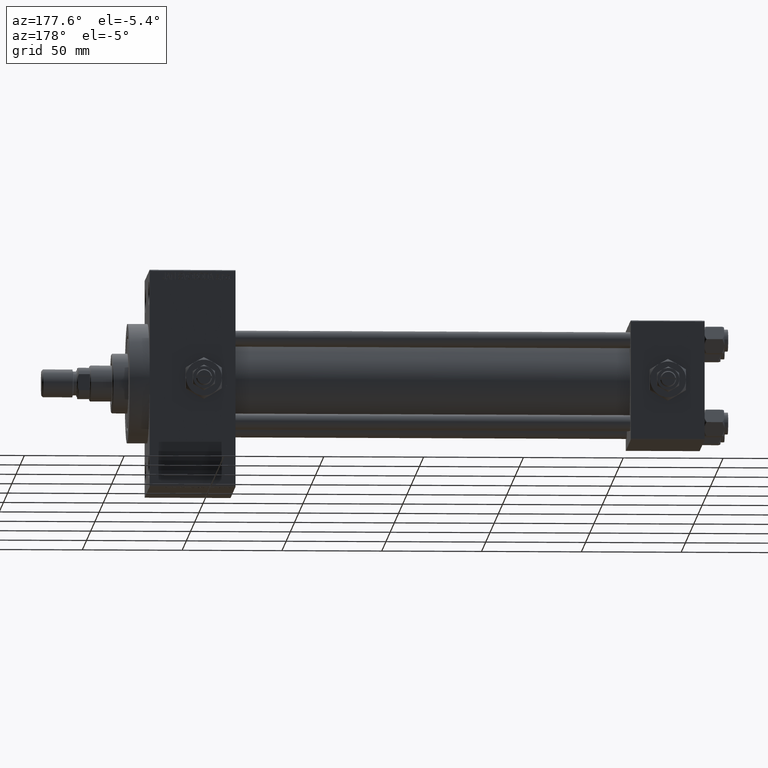
[diagram: clean part render]
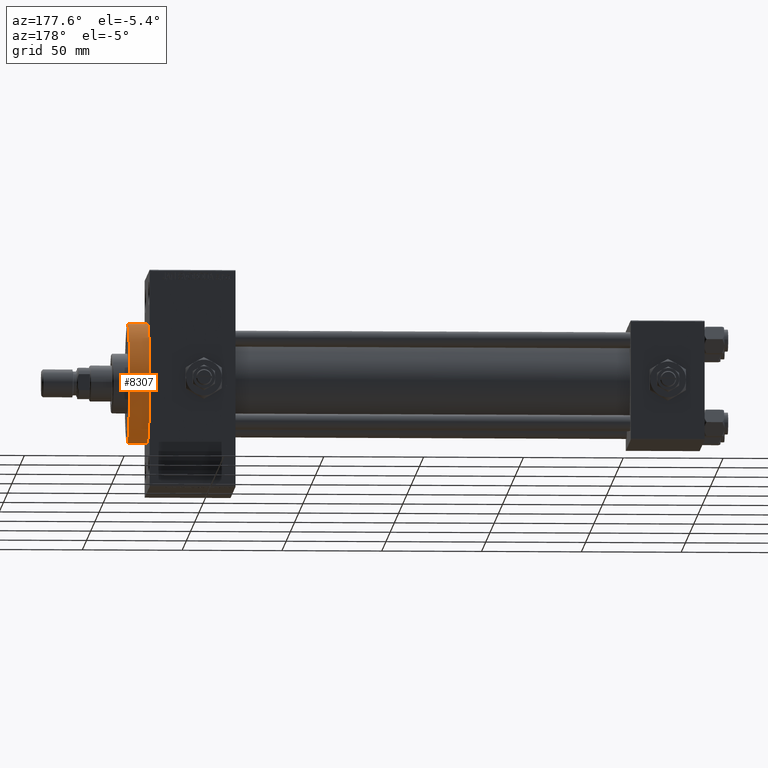
[diagram: same view with one face highlighted and labeled with its STEP entity id]
A machine part, auxiliary view. The second image highlights one B-rep face of the part: STEP entity #8307.
In plain terms, the highlighted cylindrical surface (partial cylindrical patch) has radius 30 mm, axis along (-1, -0, -0).
Its self-contained STEP definition (entity closure, byte-faithful):
#25 = VERTEX_POINT ( 'NONE', #10548 ) ;
#494 = EDGE_CURVE ( 'NONE', #33712, #10562, #15247, .T. ) ;
#2313 = CARTESIAN_POINT ( 'NONE',  ( 278.0000000000000000, 0.000000000000000000, 30.00000000000000000 ) ) ;
#2720 = CIRCLE ( 'NONE', #45508, 30.00000000000000000 ) ;
#3493 = EDGE_CURVE ( 'NONE', #25, #38855, #43907, .T. ) ;
#4103 = AXIS2_PLACEMENT_3D ( 'NONE', #38350, #46929, #8516 ) ;
#6229 = CARTESIAN_POINT ( 'NONE',  ( 278.0000000000000000, 30.00000000000000000, 0.000000000000000000 ) ) ;
#7245 = VECTOR ( 'NONE', #27749, 1000.000000000000000 ) ;
#8201 = CARTESIAN_POINT ( 'NONE',  ( 278.0000000000000000, 3.673940397442059178E-15, -30.00000000000000000 ) ) ;
#8307 = ADVANCED_FACE ( 'NONE', ( #22917 ), #43127, .T. ) ;
#8516 = DIRECTION ( 'NONE',  ( 0.000000000000000000, 0.000000000000000000, 1.000000000000000000 ) ) ;
#9888 = DIRECTION ( 'NONE',  ( 0.000000000000000000, 0.000000000000000000, -1.000000000000000000 ) ) ;
#10153 = CARTESIAN_POINT ( 'NONE',  ( 288.0000000000000568, 3.673940397442059178E-15, -30.00000000000000000 ) ) ;
#10397 = DIRECTION ( 'NONE',  ( -1.000000000000000000, -0.000000000000000000, -0.000000000000000000 ) ) ;
#10548 = CARTESIAN_POINT ( 'NONE',  ( 288.0000000000000568, 0.000000000000000000, 30.00000000000000000 ) ) ;
#10562 = VERTEX_POINT ( 'NONE', #6229 ) ;
#11239 = DIRECTION ( 'NONE',  ( 0.000000000000000000, 0.000000000000000000, -1.000000000000000000 ) ) ;
#13809 = ORIENTED_EDGE ( 'NONE', *, *, #494, .T. ) ;
#14345 = AXIS2_PLACEMENT_3D ( 'NONE', #23297, #38736, #14723 ) ;
#14723 = DIRECTION ( 'NONE',  ( 0.000000000000000000, 0.000000000000000000, -1.000000000000000000 ) ) ;
#15244 = EDGE_CURVE ( 'NONE', #10562, #38855, #2720, .T. ) ;
#15247 = CIRCLE ( 'NONE', #24109, 30.00000000000000000 ) ;
#17736 = VERTEX_POINT ( 'NONE', #32615 ) ;
#21128 = ORIENTED_EDGE ( 'NONE', *, *, #3493, .F. ) ;
#22917 = FACE_OUTER_BOUND ( 'NONE', #35902, .T. ) ;
#23297 = CARTESIAN_POINT ( 'NONE',  ( 288.0000000000000568, 0.000000000000000000, 0.000000000000000000 ) ) ;
#24109 = AXIS2_PLACEMENT_3D ( 'NONE', #26643, #26898, #11239 ) ;
#25561 = EDGE_CURVE ( 'NONE', #17736, #25, #30511, .T. ) ;
#26643 = CARTESIAN_POINT ( 'NONE',  ( 278.0000000000000000, 0.000000000000000000, 0.000000000000000000 ) ) ;
#26898 = DIRECTION ( 'NONE',  ( 1.000000000000000000, 0.000000000000000000, 0.000000000000000000 ) ) ;
#27073 = VECTOR ( 'NONE', #10397, 1000.000000000000000 ) ;
#27749 = DIRECTION ( 'NONE',  ( -1.000000000000000000, -0.000000000000000000, -0.000000000000000000 ) ) ;
#30334 = CARTESIAN_POINT ( 'NONE',  ( 278.0000000000000000, 0.000000000000000000, 0.000000000000000000 ) ) ;
#30511 = CIRCLE ( 'NONE', #14345, 30.00000000000000000 ) ;
#30967 = ORIENTED_EDGE ( 'NONE', *, *, #39443, .T. ) ;
#31304 = CARTESIAN_POINT ( 'NONE',  ( 288.0000000000000568, 0.000000000000000000, 30.00000000000000000 ) ) ;
#32615 = CARTESIAN_POINT ( 'NONE',  ( 288.0000000000000568, 3.673940397442059178E-15, -30.00000000000000000 ) ) ;
#33712 = VERTEX_POINT ( 'NONE', #8201 ) ;
#35132 = ORIENTED_EDGE ( 'NONE', *, *, #25561, .F. ) ;
#35590 = ORIENTED_EDGE ( 'NONE', *, *, #15244, .T. ) ;
#35902 = EDGE_LOOP ( 'NONE', ( #35132, #30967, #13809, #35590, #21128 ) ) ;
#38350 = CARTESIAN_POINT ( 'NONE',  ( 288.0000000000000568, 0.000000000000000000, 0.000000000000000000 ) ) ;
#38736 = DIRECTION ( 'NONE',  ( 1.000000000000000000, 0.000000000000000000, 0.000000000000000000 ) ) ;
#38855 = VERTEX_POINT ( 'NONE', #2313 ) ;
#39443 = EDGE_CURVE ( 'NONE', #17736, #33712, #45522, .T. ) ;
#41468 = DIRECTION ( 'NONE',  ( 1.000000000000000000, 0.000000000000000000, 0.000000000000000000 ) ) ;
#43127 = CYLINDRICAL_SURFACE ( 'NONE', #4103, 30.00000000000000000 ) ;
#43907 = LINE ( 'NONE', #31304, #7245 ) ;
#45508 = AXIS2_PLACEMENT_3D ( 'NONE', #30334, #41468, #9888 ) ;
#45522 = LINE ( 'NONE', #10153, #27073 ) ;
#46929 = DIRECTION ( 'NONE',  ( -1.000000000000000000, -0.000000000000000000, -0.000000000000000000 ) ) ;